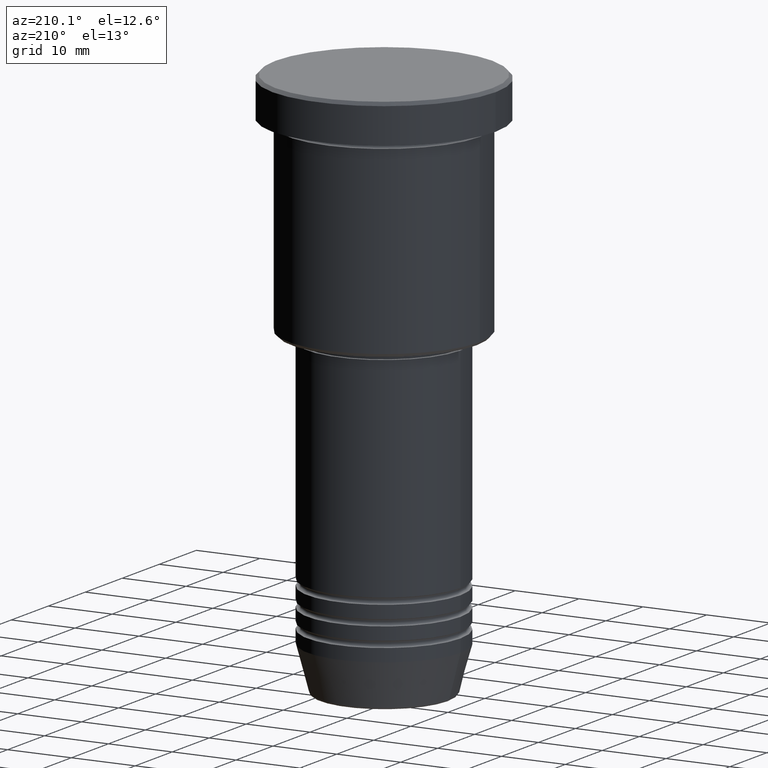
[diagram: clean part render]
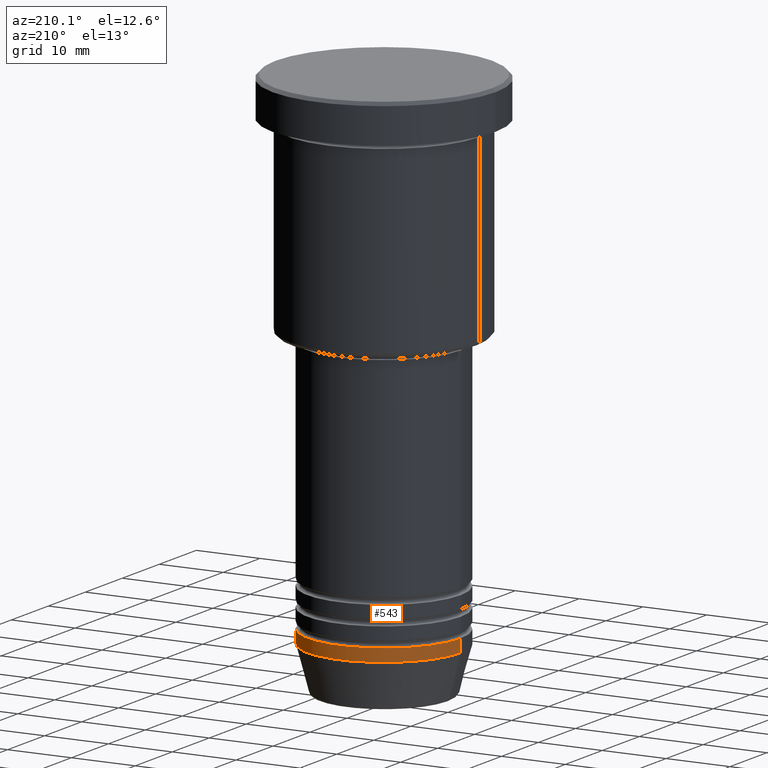
[diagram: same view with one face highlighted and labeled with its STEP entity id]
A machine part, auxiliary view. The second image highlights one B-rep face of the part: STEP entity #543.
In plain terms, the highlighted cylindrical surface (partial cylindrical patch) has radius 12 mm, axis along (-0, -0, 1).
Its self-contained STEP definition (entity closure, byte-faithful):
#4 = CARTESIAN_POINT ( 'NONE',  ( 0.000000000000000000, 0.000000000000000000, 0.000000000000000000 ) ) ;
#38 = EDGE_LOOP ( 'NONE', ( #905, #282, #755, #432 ) ) ;
#62 = VERTEX_POINT ( 'NONE', #948 ) ;
#68 = CARTESIAN_POINT ( 'NONE',  ( 12.00000000000000000, 0.000000000000000000, -79.00000000000000000 ) ) ;
#95 = DIRECTION ( 'NONE',  ( -0.000000000000000000, -0.000000000000000000, 1.000000000000000000 ) ) ;
#103 = LINE ( 'NONE', #462, #801 ) ;
#112 = LINE ( 'NONE', #1097, #681 ) ;
#118 = EDGE_CURVE ( 'NONE', #177, #62, #537, .T. ) ;
#163 = CARTESIAN_POINT ( 'NONE',  ( 0.000000000000000000, 0.000000000000000000, -79.00000000000000000 ) ) ;
#177 = VERTEX_POINT ( 'NONE', #68 ) ;
#190 = DIRECTION ( 'NONE',  ( -0.000000000000000000, -0.000000000000000000, 1.000000000000000000 ) ) ;
#252 = DIRECTION ( 'NONE',  ( -0.000000000000000000, -0.000000000000000000, 1.000000000000000000 ) ) ;
#282 = ORIENTED_EDGE ( 'NONE', *, *, #612, .T. ) ;
#380 = DIRECTION ( 'NONE',  ( 1.000000000000000000, 0.000000000000000000, 0.000000000000000000 ) ) ;
#432 = ORIENTED_EDGE ( 'NONE', *, *, #1071, .F. ) ;
#435 = AXIS2_PLACEMENT_3D ( 'NONE', #4, #95, #380 ) ;
#459 = DIRECTION ( 'NONE',  ( 1.000000000000000000, 0.000000000000000000, 0.000000000000000000 ) ) ;
#462 = CARTESIAN_POINT ( 'NONE',  ( 12.00000000000000000, 0.000000000000000000, 0.000000000000000000 ) ) ;
#492 = AXIS2_PLACEMENT_3D ( 'NONE', #702, #190, #1092 ) ;
#537 = CIRCLE ( 'NONE', #721, 12.00000000000000000 ) ;
#543 = ADVANCED_FACE ( 'NONE', ( #902 ), #896, .T. ) ;
#557 = EDGE_CURVE ( 'NONE', #771, #1151, #1107, .T. ) ;
#612 = EDGE_CURVE ( 'NONE', #62, #1151, #112, .T. ) ;
#643 = DIRECTION ( 'NONE',  ( -0.000000000000000000, -0.000000000000000000, 1.000000000000000000 ) ) ;
#645 = DIRECTION ( 'NONE',  ( -0.000000000000000000, -0.000000000000000000, 1.000000000000000000 ) ) ;
#681 = VECTOR ( 'NONE', #645, 1000.000000000000000 ) ;
#702 = CARTESIAN_POINT ( 'NONE',  ( 0.000000000000000000, 0.000000000000000000, -77.00000000000000000 ) ) ;
#721 = AXIS2_PLACEMENT_3D ( 'NONE', #163, #252, #459 ) ;
#755 = ORIENTED_EDGE ( 'NONE', *, *, #557, .F. ) ;
#759 = CARTESIAN_POINT ( 'NONE',  ( 12.00000000000000000, 0.000000000000000000, -77.00000000000000000 ) ) ;
#771 = VERTEX_POINT ( 'NONE', #759 ) ;
#801 = VECTOR ( 'NONE', #643, 1000.000000000000000 ) ;
#833 = CARTESIAN_POINT ( 'NONE',  ( -12.00000000000000000, 1.469576158976823947E-15, -77.00000000000000000 ) ) ;
#896 = CYLINDRICAL_SURFACE ( 'NONE', #435, 12.00000000000000000 ) ;
#902 = FACE_OUTER_BOUND ( 'NONE', #38, .T. ) ;
#905 = ORIENTED_EDGE ( 'NONE', *, *, #118, .T. ) ;
#948 = CARTESIAN_POINT ( 'NONE',  ( -12.00000000000000000, 1.469576158976823947E-15, -79.00000000000000000 ) ) ;
#1071 = EDGE_CURVE ( 'NONE', #177, #771, #103, .T. ) ;
#1092 = DIRECTION ( 'NONE',  ( 1.000000000000000000, 0.000000000000000000, 0.000000000000000000 ) ) ;
#1097 = CARTESIAN_POINT ( 'NONE',  ( -12.00000000000000000, 1.469576158976823947E-15, 0.000000000000000000 ) ) ;
#1107 = CIRCLE ( 'NONE', #492, 12.00000000000000000 ) ;
#1151 = VERTEX_POINT ( 'NONE', #833 ) ;